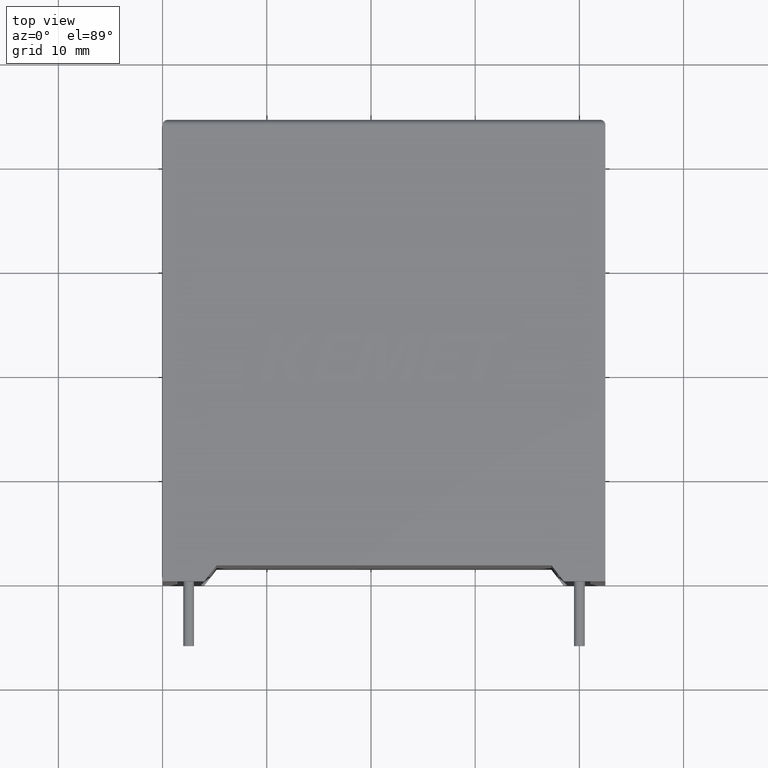
[diagram: clean part render]
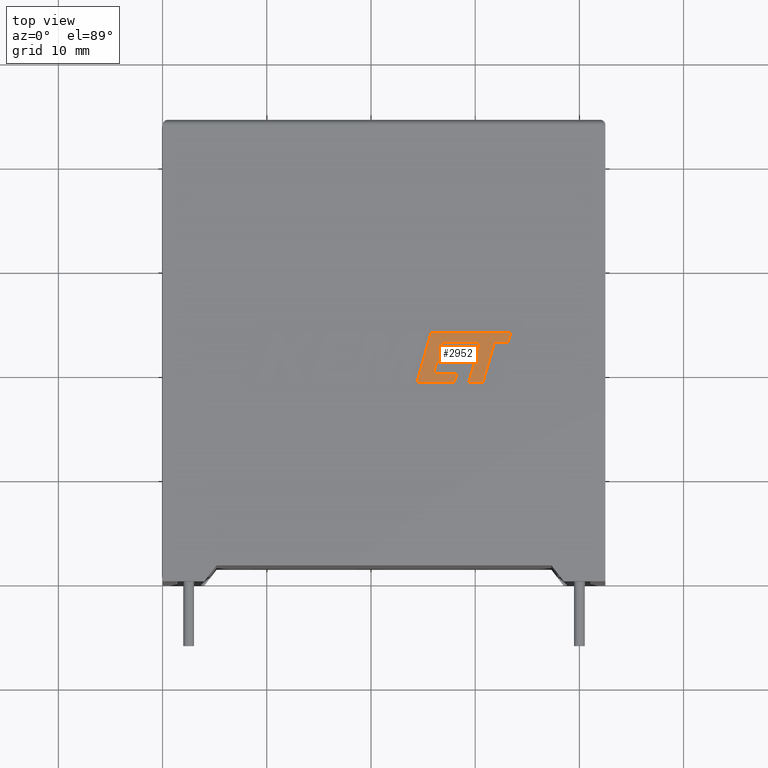
[diagram: same view with one face highlighted and labeled with its STEP entity id]
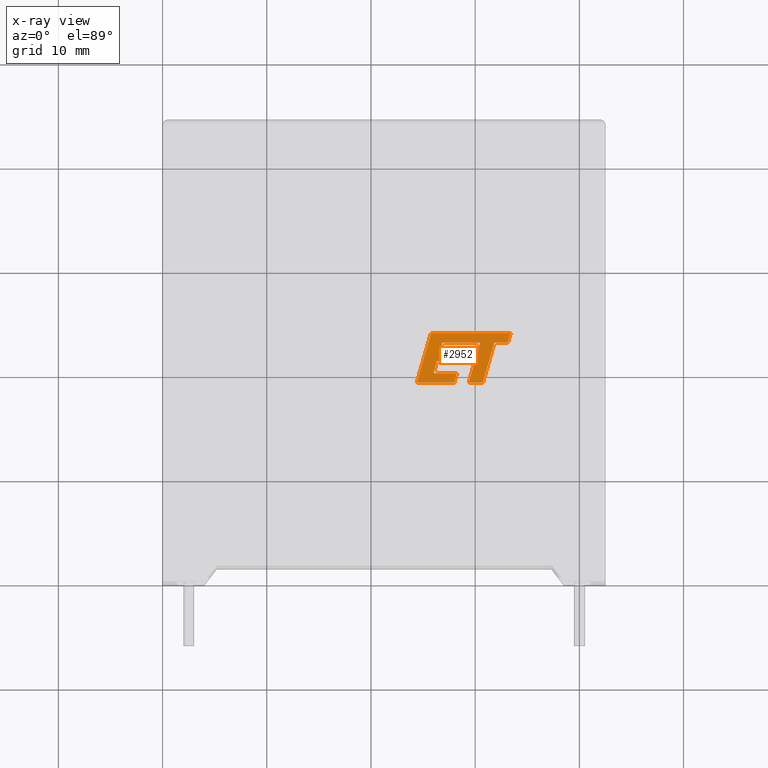
[diagram: x-ray of the same camera — body ghosted, the highlighted face saturated]
A machine part, top view. The second image highlights one B-rep face of the part: STEP entity #2952.
The next image is the same camera in x-ray: the body ghosted, the highlighted face saturated — about 0% of this face is hidden behind the body in this view.
In plain terms, the highlighted planar face has unit normal (0, 0, 1).
Its self-contained STEP definition (entity closure, byte-faithful):
#2 = ORIENTED_EDGE ( 'NONE', *, *, #284, .T. ) ;
#13 = LINE ( 'NONE', #966, #2074 ) ;
#35 = CARTESIAN_POINT ( 'NONE',  ( 24.39522737669616603, 19.06228999999985163, 24.30500000000000327 ) ) ;
#43 = LINE ( 'NONE', #2380, #2688 ) ;
#69 = VECTOR ( 'NONE', #2233, 1000.000000000000227 ) ;
#82 = CARTESIAN_POINT ( 'NONE',  ( 31.83884159906028088, 22.90351059560418534, 24.30500000000000327 ) ) ;
#170 = CARTESIAN_POINT ( 'NONE',  ( 26.85445038677461937, 22.91637830321386460, 24.30500000000000327 ) ) ;
#213 = CARTESIAN_POINT ( 'NONE',  ( 27.99181678437853904, 19.06228999999985163, 24.30500000000000327 ) ) ;
#227 = ORIENTED_EDGE ( 'NONE', *, *, #2297, .T. ) ;
#239 = EDGE_CURVE ( 'NONE', #614, #2505, #1516, .T. ) ;
#280 = DIRECTION ( 'NONE',  ( 0.9999891854650020395, -0.004650693823678666086, 0.000000000000000000 ) ) ;
#281 = VECTOR ( 'NONE', #287, 1000.000000000000114 ) ;
#284 = EDGE_CURVE ( 'NONE', #2319, #2356, #2589, .T. ) ;
#287 = DIRECTION ( 'NONE',  ( 0.2762033010290175783, 0.9610992334304890861, 0.000000000000000000 ) ) ;
#389 = CARTESIAN_POINT ( 'NONE',  ( 28.24885250033766226, 19.96812450704511477, 24.30500000000000327 ) ) ;
#399 = CARTESIAN_POINT ( 'NONE',  ( 26.00801866034743881, 19.96812450704511477, 24.30500000000000327 ) ) ;
#402 = DIRECTION ( 'NONE',  ( 0.2729786930694848013, 0.9620200793798828753, 0.000000000000000000 ) ) ;
#421 = LINE ( 'NONE', #2284, #2184 ) ;
#436 = EDGE_CURVE ( 'NONE', #2243, #2319, #1269, .T. ) ;
#489 = ORIENTED_EDGE ( 'NONE', *, *, #1596, .T. ) ;
#490 = CARTESIAN_POINT ( 'NONE',  ( 25.76447305336144566, 23.82264704111950238, 24.30500000000000327 ) ) ;
#516 = CARTESIAN_POINT ( 'NONE',  ( 29.03591039486762426, 22.91024117383021164, 24.30500000000000327 ) ) ;
#518 = VECTOR ( 'NONE', #2854, 1000.000000000000000 ) ;
#530 = DIRECTION ( 'NONE',  ( 1.000000000000000000, 0.000000000000000000, 0.000000000000000000 ) ) ;
#585 = CARTESIAN_POINT ( 'NONE',  ( 28.63968921631708398, 22.03095264623269856, 24.30500000000000327 ) ) ;
#594 = CARTESIAN_POINT ( 'NONE',  ( 28.38832745016331316, 21.15108514416315799, 24.30500000000000327 ) ) ;
#610 = LINE ( 'NONE', #389, #1847 ) ;
#614 = VERTEX_POINT ( 'NONE', #2097 ) ;
#656 = LINE ( 'NONE', #1585, #1938 ) ;
#672 = CARTESIAN_POINT ( 'NONE',  ( -0.5166956838446156164, 3.654561789267356975, 24.30499999999999616 ) ) ;
#717 = CARTESIAN_POINT ( 'NONE',  ( 29.03591039486762426, 22.91024117383021164, 24.30500000000000327 ) ) ;
#718 = EDGE_CURVE ( 'NONE', #1148, #614, #13, .T. ) ;
#760 = PLANE ( 'NONE',  #3037 ) ;
#806 = CARTESIAN_POINT ( 'NONE',  ( 26.85445038677461937, 22.91637830321386460, 24.30500000000000327 ) ) ;
#821 = VECTOR ( 'NONE', #1521, 999.9999999999998863 ) ;
#841 = ORIENTED_EDGE ( 'NONE', *, *, #1916, .T. ) ;
#846 = ORIENTED_EDGE ( 'NONE', *, *, #436, .T. ) ;
#866 = CARTESIAN_POINT ( 'NONE',  ( 30.48311498009460507, 22.90351059561602298, 24.30500000000000327 ) ) ;
#884 = EDGE_CURVE ( 'NONE', #1791, #1148, #2618, .T. ) ;
#888 = ORIENTED_EDGE ( 'NONE', *, *, #1910, .T. ) ;
#918 = VECTOR ( 'NONE', #2651, 1000.000000000000000 ) ;
#922 = ORIENTED_EDGE ( 'NONE', *, *, #2690, .T. ) ;
#942 = EDGE_CURVE ( 'NONE', #1096, #1218, #2295, .T. ) ;
#966 = CARTESIAN_POINT ( 'NONE',  ( 30.48311498009460507, 22.90351059561602298, 24.30500000000000327 ) ) ;
#1012 = CARTESIAN_POINT ( 'NONE',  ( 33.14218342602922718, 22.90340712528889711, 24.30500000000000327 ) ) ;
#1062 = LINE ( 'NONE', #2711, #918 ) ;
#1064 = ORIENTED_EDGE ( 'NONE', *, *, #2344, .T. ) ;
#1096 = VERTEX_POINT ( 'NONE', #1107 ) ;
#1107 = CARTESIAN_POINT ( 'NONE',  ( 26.00801866034743881, 19.96812450704511477, 24.30500000000000327 ) ) ;
#1110 = CARTESIAN_POINT ( 'NONE',  ( 26.34573446870268043, 21.15108514416315444, 24.30500000000000327 ) ) ;
#1129 = VERTEX_POINT ( 'NONE', #594 ) ;
#1148 = VERTEX_POINT ( 'NONE', #866 ) ;
#1218 = VERTEX_POINT ( 'NONE', #2392 ) ;
#1229 = DIRECTION ( 'NONE',  ( 0.2793947940814923148, 0.9601763114346033579, 0.000000000000000000 ) ) ;
#1257 = VECTOR ( 'NONE', #2453, 1000.000000000000000 ) ;
#1269 = LINE ( 'NONE', #1956, #2066 ) ;
#1289 = CARTESIAN_POINT ( 'NONE',  ( 28.24885250033766226, 19.96812450704511477, 24.30500000000000327 ) ) ;
#1317 = EDGE_CURVE ( 'NONE', #3006, #2098, #2941, .T. ) ;
#1337 = ORIENTED_EDGE ( 'NONE', *, *, #1689, .T. ) ;
#1414 = VERTEX_POINT ( 'NONE', #2456 ) ;
#1475 = EDGE_CURVE ( 'NONE', #1129, #2376, #656, .T. ) ;
#1516 = LINE ( 'NONE', #2228, #1257 ) ;
#1521 = DIRECTION ( 'NONE',  ( 0.9999960426590096541, -0.002813301676021314271, 0.000000000000000000 ) ) ;
#1569 = LINE ( 'NONE', #1110, #1995 ) ;
#1585 = CARTESIAN_POINT ( 'NONE',  ( 28.38832745016331316, 21.15108514416315799, 24.30500000000000327 ) ) ;
#1596 = EDGE_CURVE ( 'NONE', #1778, #2465, #421, .T. ) ;
#1631 = ORIENTED_EDGE ( 'NONE', *, *, #239, .T. ) ;
#1689 = EDGE_CURVE ( 'NONE', #2465, #1096, #610, .T. ) ;
#1706 = LINE ( 'NONE', #2144, #2548 ) ;
#1723 = ORIENTED_EDGE ( 'NONE', *, *, #2825, .T. ) ;
#1739 = VECTOR ( 'NONE', #280, 1000.000000000000114 ) ;
#1778 = VERTEX_POINT ( 'NONE', #213 ) ;
#1791 = VERTEX_POINT ( 'NONE', #717 ) ;
#1812 = DIRECTION ( 'NONE',  ( 0.000000000000000000, 0.000000000000000000, 1.000000000000000000 ) ) ;
#1817 = CARTESIAN_POINT ( 'NONE',  ( 30.73476623348292236, 19.06228999999985163, 24.30500000000000327 ) ) ;
#1847 = VECTOR ( 'NONE', #2249, 1000.000000000000000 ) ;
#1910 = EDGE_CURVE ( 'NONE', #2356, #1778, #43, .T. ) ;
#1916 = EDGE_CURVE ( 'NONE', #2505, #3006, #2637, .T. ) ;
#1938 = VECTOR ( 'NONE', #2229, 1000.000000000000227 ) ;
#1954 = CARTESIAN_POINT ( 'NONE',  ( 33.14218342602922718, 22.90340712528889711, 24.30500000000000327 ) ) ;
#1956 = CARTESIAN_POINT ( 'NONE',  ( 33.40635708298221829, 23.82264704111950238, 24.30500000000000327 ) ) ;
#1967 = DIRECTION ( 'NONE',  ( 1.000000000000000000, 5.694109626320595965E-16, 0.000000000000000000 ) ) ;
#1995 = VECTOR ( 'NONE', #2504, 1000.000000000000000 ) ;
#2028 = ORIENTED_EDGE ( 'NONE', *, *, #3052, .T. ) ;
#2066 = VECTOR ( 'NONE', #2397, 1000.000000000000000 ) ;
#2074 = VECTOR ( 'NONE', #2610, 1000.000000000000000 ) ;
#2097 = CARTESIAN_POINT ( 'NONE',  ( 29.37872117855642529, 19.06228999999985163, 24.30500000000000327 ) ) ;
#2098 = VERTEX_POINT ( 'NONE', #1954 ) ;
#2100 = ORIENTED_EDGE ( 'NONE', *, *, #1475, .T. ) ;
#2144 = CARTESIAN_POINT ( 'NONE',  ( 26.59680674762140384, 22.03095264623269856, 24.30500000000000327 ) ) ;
#2156 = LINE ( 'NONE', #1012, #281 ) ;
#2184 = VECTOR ( 'NONE', #402, 999.9999999999998863 ) ;
#2228 = CARTESIAN_POINT ( 'NONE',  ( 29.37872117855642529, 19.06228999999985163, 24.30500000000000327 ) ) ;
#2229 = DIRECTION ( 'NONE',  ( 0.2746918797667270429, 0.9615323037684286867, 0.000000000000000000 ) ) ;
#2233 = DIRECTION ( 'NONE',  ( 0.9999999968487351953, -7.938847109813994231E-05, 0.000000000000000000 ) ) ;
#2243 = VERTEX_POINT ( 'NONE', #3029 ) ;
#2249 = DIRECTION ( 'NONE',  ( -1.000000000000000000, 0.000000000000000000, 0.000000000000000000 ) ) ;
#2284 = CARTESIAN_POINT ( 'NONE',  ( 27.99181678437853904, 19.06228999999985163, 24.30500000000000327 ) ) ;
#2295 = LINE ( 'NONE', #399, #2729 ) ;
#2297 = EDGE_CURVE ( 'NONE', #2365, #1791, #2447, .T. ) ;
#2302 = FACE_OUTER_BOUND ( 'NONE', #2810, .T. ) ;
#2319 = VERTEX_POINT ( 'NONE', #2419 ) ;
#2344 = EDGE_CURVE ( 'NONE', #1414, #2365, #1706, .T. ) ;
#2356 = VERTEX_POINT ( 'NONE', #35 ) ;
#2365 = VERTEX_POINT ( 'NONE', #806 ) ;
#2376 = VERTEX_POINT ( 'NONE', #585 ) ;
#2380 = CARTESIAN_POINT ( 'NONE',  ( 24.39522737669616603, 19.06228999999985163, 24.30500000000000327 ) ) ;
#2392 = CARTESIAN_POINT ( 'NONE',  ( 26.34573446870268043, 21.15108514416315444, 24.30500000000000327 ) ) ;
#2397 = DIRECTION ( 'NONE',  ( -1.000000000000000000, 0.000000000000000000, 0.000000000000000000 ) ) ;
#2419 = CARTESIAN_POINT ( 'NONE',  ( 25.76447305336144566, 23.82264704111950238, 24.30500000000000327 ) ) ;
#2430 = CARTESIAN_POINT ( 'NONE',  ( 30.73476623348292236, 19.06228999999985163, 24.30500000000000327 ) ) ;
#2447 = LINE ( 'NONE', #170, #821 ) ;
#2450 = DIRECTION ( 'NONE',  ( 0.2762437428917223770, 0.9610876102172850599, 0.000000000000000000 ) ) ;
#2453 = DIRECTION ( 'NONE',  ( 1.000000000000000000, 0.000000000000000000, 0.000000000000000000 ) ) ;
#2456 = CARTESIAN_POINT ( 'NONE',  ( 26.59680674762140384, 22.03095264623269856, 24.30500000000000327 ) ) ;
#2465 = VERTEX_POINT ( 'NONE', #1289 ) ;
#2504 = DIRECTION ( 'NONE',  ( 1.000000000000000000, 1.002616505299178603E-15, 0.000000000000000000 ) ) ;
#2505 = VERTEX_POINT ( 'NONE', #1817 ) ;
#2543 = CARTESIAN_POINT ( 'NONE',  ( 31.83884159906028088, 22.90351059560418534, 24.30500000000000327 ) ) ;
#2548 = VECTOR ( 'NONE', #1229, 1000.000000000000114 ) ;
#2554 = DIRECTION ( 'NONE',  ( 0.2745159998572629934, 0.9615825319869153454, 0.000000000000000000 ) ) ;
#2589 = LINE ( 'NONE', #490, #518 ) ;
#2610 = DIRECTION ( 'NONE',  ( -0.2763173343569615414, -0.9610664548999008350, 0.000000000000000000 ) ) ;
#2618 = LINE ( 'NONE', #516, #1739 ) ;
#2637 = LINE ( 'NONE', #2430, #2983 ) ;
#2651 = DIRECTION ( 'NONE',  ( -1.000000000000000000, 0.000000000000000000, 0.000000000000000000 ) ) ;
#2688 = VECTOR ( 'NONE', #1967, 1000.000000000000000 ) ;
#2690 = EDGE_CURVE ( 'NONE', #2098, #2243, #2156, .T. ) ;
#2711 = CARTESIAN_POINT ( 'NONE',  ( 28.63968921631708398, 22.03095264623269856, 24.30500000000000327 ) ) ;
#2729 = VECTOR ( 'NONE', #2554, 1000.000000000000227 ) ;
#2798 = ORIENTED_EDGE ( 'NONE', *, *, #1317, .T. ) ;
#2802 = ORIENTED_EDGE ( 'NONE', *, *, #718, .T. ) ;
#2810 = EDGE_LOOP ( 'NONE', ( #227, #3025, #2802, #1631, #841, #2798, #922, #846, #2, #888, #489, #1337, #3012, #1723, #2100, #2028, #1064 ) ) ;
#2825 = EDGE_CURVE ( 'NONE', #1218, #1129, #1569, .T. ) ;
#2854 = DIRECTION ( 'NONE',  ( -0.2764273280489764617, -0.9610348236706636182, 0.000000000000000000 ) ) ;
#2941 = LINE ( 'NONE', #82, #69 ) ;
#2952 = ADVANCED_FACE ( 'NONE', ( #2302 ), #760, .T. ) ;
#2983 = VECTOR ( 'NONE', #2450, 1000.000000000000000 ) ;
#3006 = VERTEX_POINT ( 'NONE', #2543 ) ;
#3012 = ORIENTED_EDGE ( 'NONE', *, *, #942, .T. ) ;
#3025 = ORIENTED_EDGE ( 'NONE', *, *, #884, .T. ) ;
#3029 = CARTESIAN_POINT ( 'NONE',  ( 33.40635708298221829, 23.82264704111950238, 24.30500000000000327 ) ) ;
#3037 = AXIS2_PLACEMENT_3D ( 'NONE', #672, #1812, #530 ) ;
#3052 = EDGE_CURVE ( 'NONE', #2376, #1414, #1062, .T. ) ;